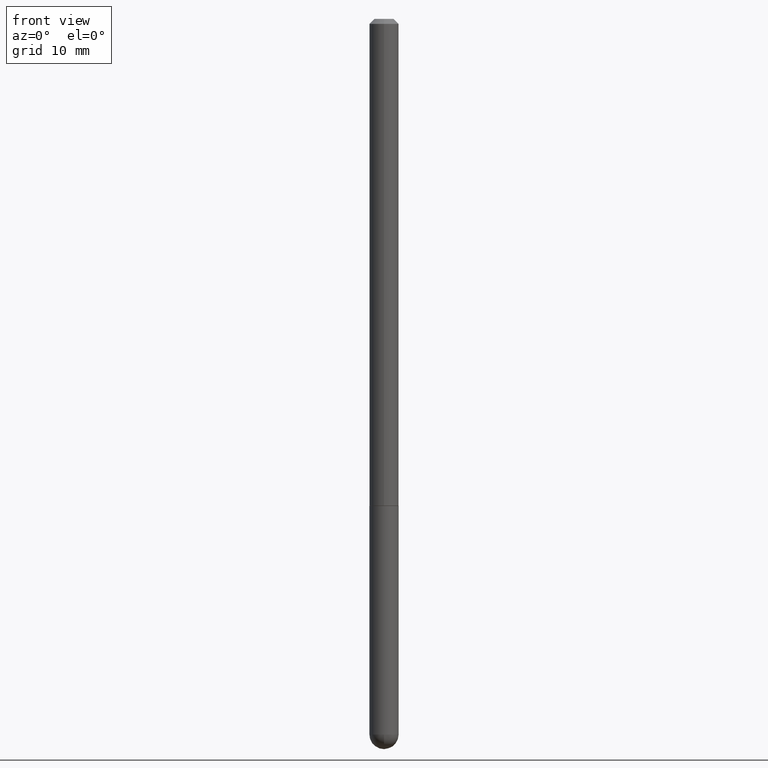
[diagram: clean part render]
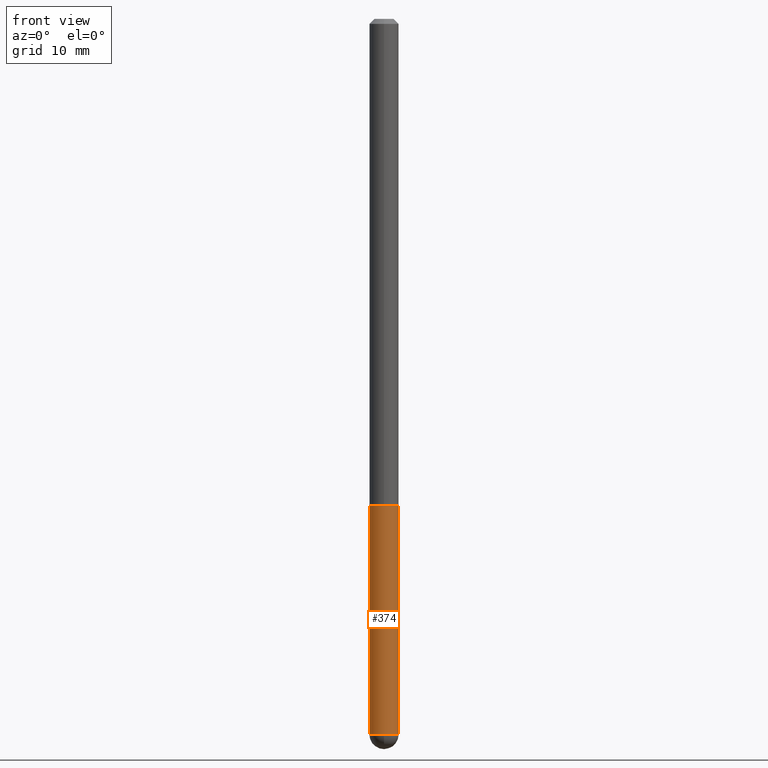
[diagram: same view with one face highlighted and labeled with its STEP entity id]
A machine part, front view. The second image highlights one B-rep face of the part: STEP entity #374.
In plain terms, the highlighted cylindrical surface (edge-blend (fillet) strip) has radius 1.4999 mm, axis along (-0, 0, 1).
Its self-contained STEP definition (entity closure, byte-faithful):
#4 = VERTEX_POINT ( 'NONE', #366 ) ;
#8 = CARTESIAN_POINT ( 'NONE',  ( 0.05905000000000001914, -4.123439461173741806E-16, 2.879382386107500921E-30 ) ) ;
#18 = AXIS2_PLACEMENT_3D ( 'NONE', #158, #252, #136 ) ;
#33 = CIRCLE ( 'NONE', #56, 0.05905000000000001914 ) ;
#41 = AXIS2_PLACEMENT_3D ( 'NONE', #332, #199, #103 ) ;
#45 = LINE ( 'NONE', #295, #207 ) ;
#56 = AXIS2_PLACEMENT_3D ( 'NONE', #379, #211, #221 ) ;
#60 = CIRCLE ( 'NONE', #18, 0.05905000000000001914 ) ;
#72 = ORIENTED_EDGE ( 'NONE', *, *, #236, .T. ) ;
#76 = VERTEX_POINT ( 'NONE', #237 ) ;
#80 = EDGE_CURVE ( 'NONE', #257, #98, #33, .T. ) ;
#98 = VERTEX_POINT ( 'NONE', #133 ) ;
#100 = AXIS2_PLACEMENT_3D ( 'NONE', #409, #270, #308 ) ;
#103 = DIRECTION ( 'NONE',  ( 1.000000000000000000, -6.982962677686270655E-15, 0.000000000000000000 ) ) ;
#123 = ORIENTED_EDGE ( 'NONE', *, *, #143, .F. ) ;
#125 = ORIENTED_EDGE ( 'NONE', *, *, #288, .T. ) ;
#128 = EDGE_CURVE ( 'NONE', #4, #185, #215, .T. ) ;
#133 = CARTESIAN_POINT ( 'NONE',  ( 0.05905000000000001914, -7.285324961630105839E-15, -1.968499999999999694 ) ) ;
#136 = DIRECTION ( 'NONE',  ( 1.000000000000000000, -6.982962677686270655E-15, 0.000000000000000000 ) ) ;
#143 = EDGE_CURVE ( 'NONE', #76, #257, #45, .T. ) ;
#153 = FACE_OUTER_BOUND ( 'NONE', #296, .T. ) ;
#158 = CARTESIAN_POINT ( 'NONE',  ( 7.076575357898237682E-29, -1.010347412427735067E-14, -2.893749999999999822 ) ) ;
#167 = LINE ( 'NONE', #8, #173 ) ;
#173 = VECTOR ( 'NONE', #256, 39.37007874015748143 ) ;
#185 = VERTEX_POINT ( 'NONE', #320 ) ;
#199 = DIRECTION ( 'NONE',  ( -2.445468806185136597E-29, 3.491481338843145583E-15, 1.000000000000000000 ) ) ;
#207 = VECTOR ( 'NONE', #369, 39.37007874015748143 ) ;
#211 = DIRECTION ( 'NONE',  ( -2.445468806185136597E-29, 3.491481338843145583E-15, 1.000000000000000000 ) ) ;
#215 = CIRCLE ( 'NONE', #41, 0.05905000000000001914 ) ;
#221 = DIRECTION ( 'NONE',  ( 1.000000000000000000, -6.982962677686270655E-15, 0.000000000000000000 ) ) ;
#236 = EDGE_CURVE ( 'NONE', #76, #4, #60, .T. ) ;
#237 = CARTESIAN_POINT ( 'NONE',  ( -0.05905000000000001914, -8.068652084428701697E-15, -2.893749999999999822 ) ) ;
#252 = DIRECTION ( 'NONE',  ( -2.445468806185136597E-29, 3.491481338843145583E-15, 1.000000000000000000 ) ) ;
#256 = DIRECTION ( 'NONE',  ( -2.445468806185136877E-29, 3.491481338843145188E-15, 1.000000000000000000 ) ) ;
#257 = VERTEX_POINT ( 'NONE', #306 ) ;
#270 = DIRECTION ( 'NONE',  ( -2.445468806185136597E-29, 3.491481338843145583E-15, 1.000000000000000000 ) ) ;
#288 = EDGE_CURVE ( 'NONE', #185, #98, #167, .T. ) ;
#295 = CARTESIAN_POINT ( 'NONE',  ( -0.05905000000000001914, 4.195754854663392958E-16, -2.904631170795522943E-30 ) ) ;
#296 = EDGE_LOOP ( 'NONE', ( #123, #72, #328, #125, #299 ) ) ;
#299 = ORIENTED_EDGE ( 'NONE', *, *, #80, .F. ) ;
#304 = CYLINDRICAL_SURFACE ( 'NONE', #100, 0.05905000000000001914 ) ;
#306 = CARTESIAN_POINT ( 'NONE',  ( -0.05905000000000001914, -8.068652084428701697E-15, -1.968499999999999694 ) ) ;
#308 = DIRECTION ( 'NONE',  ( 1.000000000000000000, -6.982962677686266711E-15, 4.876176775795935793E-29 ) ) ;
#320 = CARTESIAN_POINT ( 'NONE',  ( 0.05905000000000001914, -8.900571516012416899E-15, -2.893749999999999822 ) ) ;
#328 = ORIENTED_EDGE ( 'NONE', *, *, #128, .T. ) ;
#332 = CARTESIAN_POINT ( 'NONE',  ( 7.076575357898237682E-29, -1.010347412427735067E-14, -2.893749999999999822 ) ) ;
#366 = CARTESIAN_POINT ( 'NONE',  ( -4.195754854662709114E-16, -0.05905000000001047605, -2.893749999999999822 ) ) ;
#369 = DIRECTION ( 'NONE',  ( -2.445468806185136877E-29, 3.491481338843145188E-15, 1.000000000000000000 ) ) ;
#374 = ADVANCED_FACE ( 'NONE', ( #153 ), #304, .T. ) ;
#379 = CARTESIAN_POINT ( 'NONE',  ( 4.813905344975440714E-29, -6.872981015512730918E-15, -1.968499999999999694 ) ) ;
#409 = CARTESIAN_POINT ( 'NONE',  ( 0.000000000000000000, 0.000000000000000000, 0.000000000000000000 ) ) ;